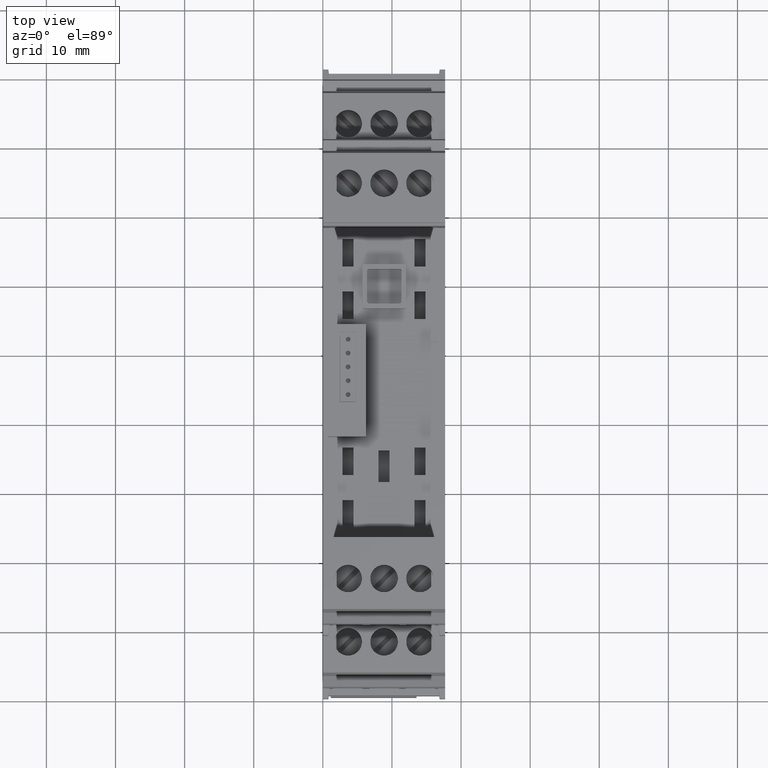
[diagram: clean part render]
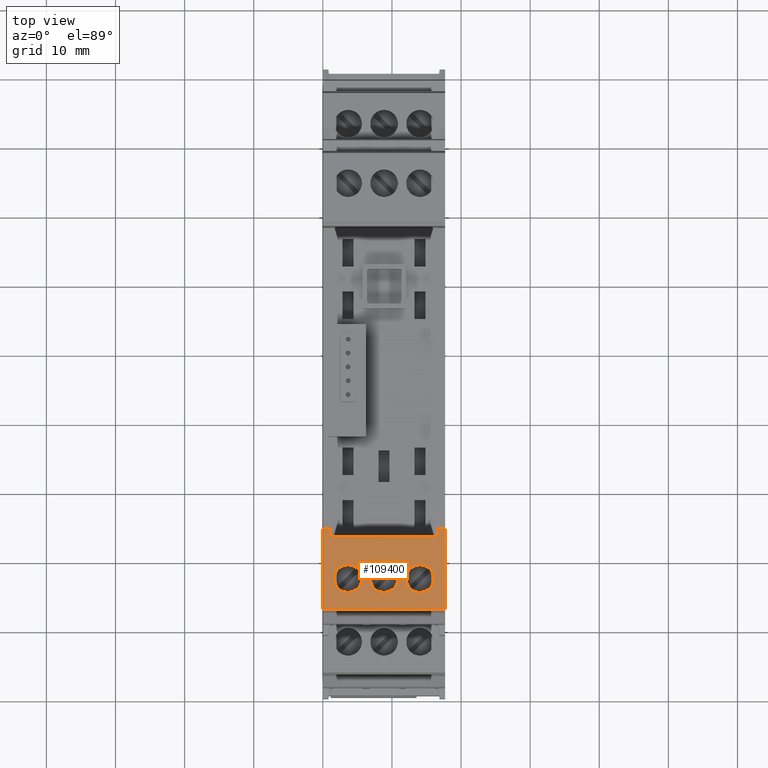
[diagram: same view with one face highlighted and labeled with its STEP entity id]
A machine part, top view. The second image highlights one B-rep face of the part: STEP entity #109400.
In plain terms, the highlighted planar face has unit normal (0, -0, 1).
Its self-contained STEP definition (entity closure, byte-faithful):
#120=CARTESIAN_POINT('',(96.7530202407205,71.8738971800403,
-0.938341447591361));
#130=VERTEX_POINT('',#120);
#5560=CARTESIAN_POINT('',(85.1527535741352,71.8738971800403,
-0.938341447592888));
#5570=VERTEX_POINT('',#5560);
#5600=CARTESIAN_POINT('',(171.854165367466,71.8738971800403,
-0.938341447581461));
#5610=DIRECTION('',(-1.,3.12261352265961E-23,-1.31820478495383E-13));
#5620=VECTOR('',#5610,1.);
#5630=LINE('',#5600,#5620);
#5640=EDGE_CURVE('',#130,#5570,#5630,.T.);
#9200=CARTESIAN_POINT('',(96.7530202399424,71.8738971792622,
-18.6383414440323));
#9210=VERTEX_POINT('',#9200);
#9240=CARTESIAN_POINT('',(171.854165366688,71.8738971792622,
-18.6383414440422));
#9250=DIRECTION('',(-1.,4.2815316160355E-23,1.31820482418933E-13));
#9260=VECTOR('',#9250,1.);
#9270=LINE('',#9240,#9260);
#9280=CARTESIAN_POINT('',(85.1527535733551,71.8738971792622,
-18.6383414440307));
#9290=VERTEX_POINT('',#9280);
#9300=EDGE_CURVE('',#9210,#9290,#9270,.T.);
#108300=CARTESIAN_POINT('',(85.5346451428875,71.8738971792622,
-18.6383414425516));
#108310=DIRECTION('',(3.70213102578664E-23,1.,-4.39608926050624E-11));
#108320=DIRECTION('',(-1.,3.70213103441081E-23,1.96178160729168E-21));
#108330=AXIS2_PLACEMENT_3D('',#108300,#108310,#108320);
#108340=PLANE('',#108330);
#108350=CARTESIAN_POINT('',(89.5530202416373,71.8738971798799,
-4.58834144457132));
#108360=DIRECTION('',(3.69714153587613E-23,-1.,4.39608926050624E-11));
#108370=DIRECTION('',(1.,3.69730746247957E-23,-1.96178160729168E-21));
#108380=AXIS2_PLACEMENT_3D('',#108350,#108360,#108370);
#108390=CIRCLE('',#108380,2.);
#108400=CARTESIAN_POINT('',(91.5530202416373,71.8738971798799,
-4.58834144457132));
#108410=VERTEX_POINT('',#108400);
#108420=CARTESIAN_POINT('',(87.5530202416373,71.8738971798799,
-4.58834144457132));
#108430=VERTEX_POINT('',#108420);
#108440=EDGE_CURVE('',#108410,#108430,#108390,.T.);
#108450=ORIENTED_EDGE('',*,*,#108440,.T.);
#108460=CARTESIAN_POINT('',(87.9082442661516,71.8738971798299,
-5.72619556108407));
#108470=VERTEX_POINT('',#108460);
#108480=EDGE_CURVE('',#108470,#108410,#108390,.T.);
#108490=ORIENTED_EDGE('',*,*,#108480,.T.);
#108500=EDGE_CURVE('',#108430,#108470,#108390,.T.);
#108510=ORIENTED_EDGE('',*,*,#108500,.T.);
#108520=EDGE_LOOP('',(#108510,#108490,#108450));
#108530=FACE_BOUND('',#108520,.T.);
#108540=CARTESIAN_POINT('',(89.5530202416373,71.8738971796513,
-9.78834144457132));
#108550=DIRECTION('',(3.69714153587613E-23,-1.,4.39608926050624E-11));
#108560=DIRECTION('',(1.,3.69730746247957E-23,-1.96178160729168E-21));
#108570=AXIS2_PLACEMENT_3D('',#108540,#108550,#108560);
#108580=CIRCLE('',#108570,2.);
#108590=CARTESIAN_POINT('',(91.5530202416373,71.8738971796513,
-9.78834144457132));
#108600=VERTEX_POINT('',#108590);
#108610=CARTESIAN_POINT('',(87.5530202416373,71.8738971796513,
-9.78834144457132));
#108620=VERTEX_POINT('',#108610);
#108630=EDGE_CURVE('',#108600,#108620,#108580,.T.);
#108640=ORIENTED_EDGE('',*,*,#108630,.T.);
#108650=CARTESIAN_POINT('',(88.4010954790534,71.8738971795794,
-11.4232938418435));
#108660=VERTEX_POINT('',#108650);
#108670=EDGE_CURVE('',#108660,#108600,#108580,.T.);
#108680=ORIENTED_EDGE('',*,*,#108670,.T.);
#108690=EDGE_CURVE('',#108620,#108660,#108580,.T.);
#108700=ORIENTED_EDGE('',*,*,#108690,.T.);
#108710=EDGE_LOOP('',(#108700,#108680,#108640));
#108720=FACE_BOUND('',#108710,.T.);
#108730=CARTESIAN_POINT('',(89.5530202416373,71.8738971794227,
-14.9883414445713));
#108740=DIRECTION('',(3.69714153587613E-23,-1.,4.39608926050624E-11));
#108750=DIRECTION('',(1.,3.69730746247957E-23,-1.96178160729168E-21));
#108760=AXIS2_PLACEMENT_3D('',#108730,#108740,#108750);
#108770=CIRCLE('',#108760,2.);
#108780=CARTESIAN_POINT('',(91.5530202416373,71.8738971794227,
-14.9883414445713));
#108790=VERTEX_POINT('',#108780);
#108800=CARTESIAN_POINT('',(87.5530202416373,71.8738971794227,
-14.9883414445713));
#108810=VERTEX_POINT('',#108800);
#108820=EDGE_CURVE('',#108790,#108810,#108770,.T.);
#108830=ORIENTED_EDGE('',*,*,#108820,.T.);
#108840=CARTESIAN_POINT('',(87.9082442661516,71.8738971793727,
-16.1261955610841));
#108850=VERTEX_POINT('',#108840);
#108860=EDGE_CURVE('',#108850,#108790,#108770,.T.);
#108870=ORIENTED_EDGE('',*,*,#108860,.T.);
#108880=EDGE_CURVE('',#108810,#108850,#108770,.T.);
#108890=ORIENTED_EDGE('',*,*,#108880,.T.);
#108900=EDGE_LOOP('',(#108890,#108870,#108830));
#108910=FACE_BOUND('',#108900,.T.);
#108920=CARTESIAN_POINT('',(96.7530202412574,71.8738971805772,
11.275000003146));
#108930=DIRECTION('',(4.39611701608816E-11,4.39608926050624E-11,1.));
#108940=VECTOR('',#108930,1.);
#108950=LINE('',#108920,#108940);
#108960=CARTESIAN_POINT('',(96.7530202399907,71.8738971793106,
-17.5383414494977));
#108970=VERTEX_POINT('',#108960);
#108980=EDGE_CURVE('',#9210,#108970,#108950,.T.);
#108990=ORIENTED_EDGE('',*,*,#108980,.F.);
#109000=CARTESIAN_POINT('',(171.854165366736,71.8738971793106,
-17.5383414494977));
#109010=DIRECTION('',(1.,-3.70207256934755E-23,-1.96178160729168E-21));
#109020=VECTOR('',#109010,1.);
#109030=LINE('',#109000,#109020);
#109040=CARTESIAN_POINT('',(95.5530202398528,71.8738971793106,
-17.5383414494977));
#109050=VERTEX_POINT('',#109040);
#109060=EDGE_CURVE('',#109050,#108970,#109030,.T.);
#109070=ORIENTED_EDGE('',*,*,#109060,.T.);
#109080=CARTESIAN_POINT('',(95.5530202398528,71.8738971805772,
11.2750000031987));
#109090=DIRECTION('',(-1.96178160729168E-21,-4.39608926050624E-11,-1.));
#109100=VECTOR('',#109090,1.);
#109110=LINE('',#109080,#109100);
#109120=CARTESIAN_POINT('',(95.5530202398528,71.873897179992,
-2.0383414494975));
#109130=VERTEX_POINT('',#109120);
#109140=EDGE_CURVE('',#109130,#109050,#109110,.T.);
#109150=ORIENTED_EDGE('',*,*,#109140,.T.);
#109160=CARTESIAN_POINT('',(171.854165367418,71.873897179992,
-2.0383414494975));
#109170=DIRECTION('',(1.,-3.70207256934755E-23,-1.96178160729168E-21));
#109180=VECTOR('',#109170,1.);
#109190=LINE('',#109160,#109180);
#109200=CARTESIAN_POINT('',(96.7530202406721,71.873897179992,
-2.0383414494975));
#109210=VERTEX_POINT('',#109200);
#109220=EDGE_CURVE('',#109130,#109210,#109190,.T.);
#109230=ORIENTED_EDGE('',*,*,#109220,.F.);
#109240=CARTESIAN_POINT('',(96.7530202412574,71.8738971805772,
11.275000003146));
#109250=DIRECTION('',(4.39611701608816E-11,4.39608926050624E-11,1.));
#109260=VECTOR('',#109250,1.);
#109270=LINE('',#109240,#109260);
#109280=EDGE_CURVE('',#109210,#130,#109270,.T.);
#109290=ORIENTED_EDGE('',*,*,#109280,.F.);
#109300=ORIENTED_EDGE('',*,*,#5640,.F.);
#109310=CARTESIAN_POINT('',(85.1527535741352,71.8738971800403,
-0.938341442101718));
#109320=DIRECTION('',(-4.40728946656164E-11,-4.39608926050624E-11,-1.));
#109330=VECTOR('',#109320,1.);
#109340=LINE('',#109310,#109330);
#109350=EDGE_CURVE('',#5570,#9290,#109340,.T.);
#109360=ORIENTED_EDGE('',*,*,#109350,.F.);
#109370=ORIENTED_EDGE('',*,*,#9300,.T.);
#109380=EDGE_LOOP('',(#109370,#109360,#109300,#109290,#109230,#109150,
#109070,#108990));
#109390=FACE_OUTER_BOUND('',#109380,.T.);
#109400=ADVANCED_FACE('',(#108530,#108720,#108910,#109390),#108340,.T.);